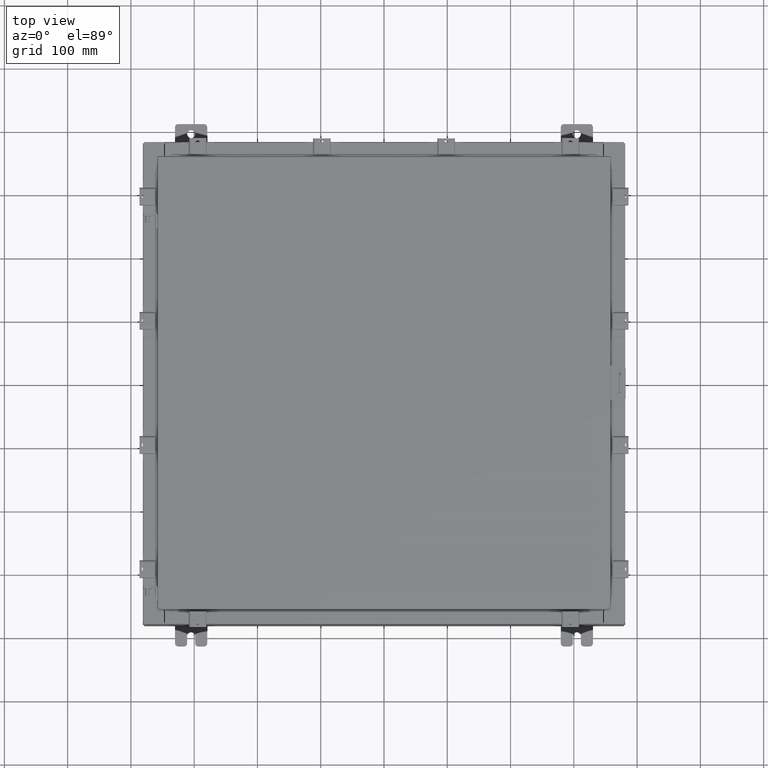
[diagram: clean part render]
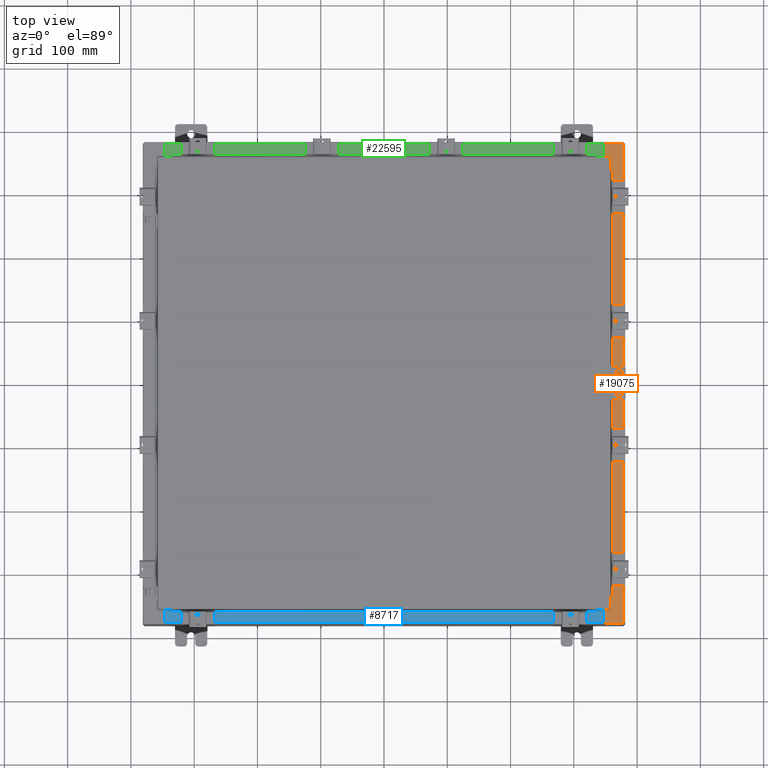
[diagram: same view with three faces highlighted in distinct colors, each labeled with its STEP entity id]
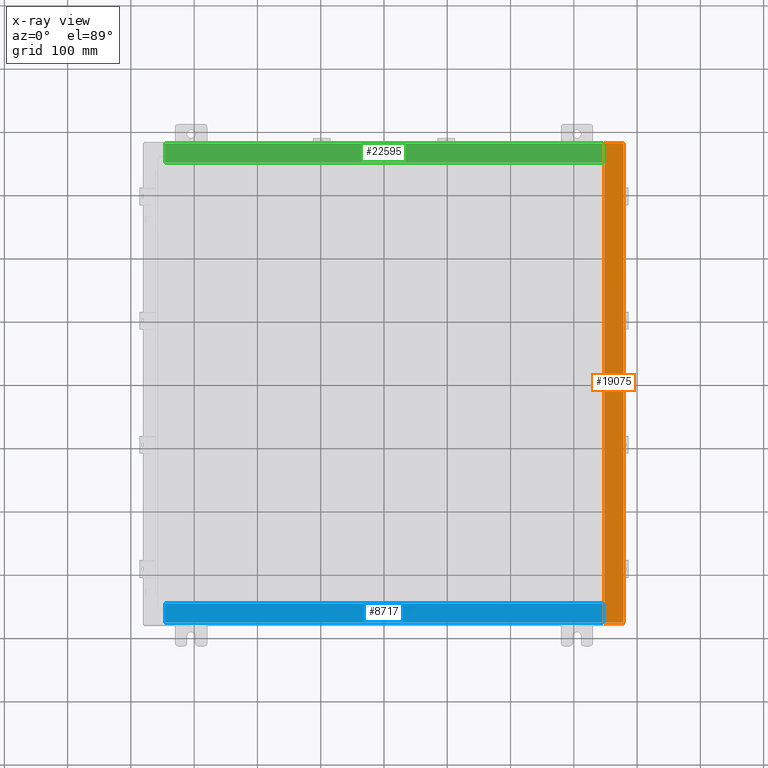
[diagram: x-ray of the same camera — body ghosted, the three highlighted faces saturated]
A machine part, top view with three faces highlighted in distinct colors.
The next image is the same camera in x-ray (body ghosted, the three faces saturated) — at least one of them is partly hidden behind the body in this view.
Their STEP definitions:

[orange] entity #19075 — the highlighted planar face has unit normal (-0, 0, -1).
#10 = LINE ( 'NONE', #6426, #10573 ) ;
#98 = CARTESIAN_POINT ( 'NONE',  ( 13.71270000000003200, -13.59375000000000400, 7.925300000000008900 ) ) ;
#129 = CARTESIAN_POINT ( 'NONE',  ( 13.75005000000003200, -13.63110000000000400, 7.925300000000006200 ) ) ;
#223 = CARTESIAN_POINT ( 'NONE',  ( 4.972393517341156900E-014, 0.0000000000000000000, 7.925300000000092400 ) ) ;
#279 = EDGE_CURVE ( 'NONE', #5998, #10411, #10, .T. ) ;
#1112 = DIRECTION ( 'NONE',  ( 1.000000000000000000, 0.0000000000000000000, 0.0000000000000000000 ) ) ;
#2053 = CARTESIAN_POINT ( 'NONE',  ( 13.69970000000003000, 13.63109999999998600, 7.925300000000007100 ) ) ;
#2262 = DIRECTION ( 'NONE',  ( 6.241167087353086200E-015, 0.0000000000000000000, 1.000000000000000000 ) ) ;
#2384 = ORIENTED_EDGE ( 'NONE', *, *, #6557, .T. ) ;
#2454 = ORIENTED_EDGE ( 'NONE', *, *, #15174, .F. ) ;
#2640 = LINE ( 'NONE', #14648, #6443 ) ;
#3423 = ORIENTED_EDGE ( 'NONE', *, *, #12220, .T. ) ;
#3791 = DIRECTION ( 'NONE',  ( 1.000000000000000000, 1.783190596386596200E-015, -6.241167087353087800E-015 ) ) ;
#4000 = PLANE ( 'NONE',  #11624 ) ;
#4011 = EDGE_CURVE ( 'NONE', #22765, #8154, #6402, .T. ) ;
#4141 = ORIENTED_EDGE ( 'NONE', *, *, #14923, .T. ) ;
#4218 = LINE ( 'NONE', #16989, #21179 ) ;
#4657 = EDGE_CURVE ( 'NONE', #6560, #22765, #10778, .T. ) ;
#4845 = VERTEX_POINT ( 'NONE', #129 ) ;
#4980 = EDGE_CURVE ( 'NONE', #5998, #16349, #23011, .T. ) ;
#5789 = VERTEX_POINT ( 'NONE', #10538 ) ;
#5817 = VECTOR ( 'NONE', #13983, 39.37007874015748100 ) ;
#5998 = VERTEX_POINT ( 'NONE', #7482 ) ;
#6122 = EDGE_CURVE ( 'NONE', #4845, #9684, #16290, .T. ) ;
#6353 = DIRECTION ( 'NONE',  ( -0.0000000000000000000, -1.000000000000000000, -0.0000000000000000000 ) ) ;
#6402 = LINE ( 'NONE', #21381, #5817 ) ;
#6426 = CARTESIAN_POINT ( 'NONE',  ( 4.972393517341156900E-014, 14.92530000000000000, 7.925300000000092400 ) ) ;
#6443 = VECTOR ( 'NONE', #18415, 39.37007874015748100 ) ;
#6557 = EDGE_CURVE ( 'NONE', #7055, #16349, #14807, .T. ) ;
#6560 = VERTEX_POINT ( 'NONE', #98 ) ;
#7055 = VERTEX_POINT ( 'NONE', #7114 ) ;
#7114 = CARTESIAN_POINT ( 'NONE',  ( 13.69970000000003000, -14.92530000000000200, 7.925300000000007100 ) ) ;
#7463 = LINE ( 'NONE', #14231, #11284 ) ;
#7482 = CARTESIAN_POINT ( 'NONE',  ( 14.91230000000002900, 14.92530000000000200, 7.925300000000000000 ) ) ;
#7635 = DIRECTION ( 'NONE',  ( -1.000000000000000000, 0.0000000000000000000, 0.0000000000000000000 ) ) ;
#7879 = DIRECTION ( 'NONE',  ( -1.000000000000000000, 0.0000000000000000000, 6.241167087353087800E-015 ) ) ;
#8061 = LINE ( 'NONE', #20178, #22405 ) ;
#8154 = VERTEX_POINT ( 'NONE', #17192 ) ;
#8871 = ORIENTED_EDGE ( 'NONE', *, *, #4980, .F. ) ;
#9185 = LINE ( 'NONE', #20844, #23489 ) ;
#9639 = DIRECTION ( 'NONE',  ( -1.000000000000000000, 0.0000000000000000000, 6.241167087353086200E-015 ) ) ;
#9684 = VERTEX_POINT ( 'NONE', #11806 ) ;
#9729 = DIRECTION ( 'NONE',  ( -2.590438124695581200E-031, -1.000000000000000000, 1.616735716567471300E-045 ) ) ;
#9772 = CARTESIAN_POINT ( 'NONE',  ( 13.75005000000003200, -13.61242500000000400, 7.925300000000008900 ) ) ;
#10411 = VERTEX_POINT ( 'NONE', #20647 ) ;
#10432 = EDGE_CURVE ( 'NONE', #11508, #22908, #4218, .T. ) ;
#10538 = CARTESIAN_POINT ( 'NONE',  ( 13.69970000000003000, -13.63110000000000400, 7.925300000000007100 ) ) ;
#10573 = VECTOR ( 'NONE', #7879, 39.37007874015748100 ) ;
#10707 = FACE_OUTER_BOUND ( 'NONE', #23512, .T. ) ;
#10778 = LINE ( 'NONE', #18240, #18977 ) ;
#11176 = ORIENTED_EDGE ( 'NONE', *, *, #23994, .F. ) ;
#11284 = VECTOR ( 'NONE', #1112, 39.37007874015748100 ) ;
#11389 = AXIS2_PLACEMENT_3D ( 'NONE', #9772, #22837, #11672 ) ;
#11508 = VERTEX_POINT ( 'NONE', #14662 ) ;
#11624 = AXIS2_PLACEMENT_3D ( 'NONE', #223, #20824, #9639 ) ;
#11672 = DIRECTION ( 'NONE',  ( 1.000000000000000000, 0.0000000000000000000, 0.0000000000000000000 ) ) ;
#11806 = CARTESIAN_POINT ( 'NONE',  ( 13.75005000000003200, -13.59375000000000400, 7.925300000000006200 ) ) ;
#12220 = EDGE_CURVE ( 'NONE', #10411, #22908, #9185, .T. ) ;
#13490 = CARTESIAN_POINT ( 'NONE',  ( 13.75005000000003200, 13.61242499999998600, 7.925300000000008900 ) ) ;
#13983 = DIRECTION ( 'NONE',  ( 1.000000000000000000, 0.0000000000000000000, 0.0000000000000000000 ) ) ;
#14114 = ORIENTED_EDGE ( 'NONE', *, *, #23384, .F. ) ;
#14231 = CARTESIAN_POINT ( 'NONE',  ( 13.69970000000003000, -13.63110000000000400, 7.925300000000008900 ) ) ;
#14648 = CARTESIAN_POINT ( 'NONE',  ( 13.69970000000003000, -3.548822517689199900E-030, 7.925300000000007100 ) ) ;
#14662 = CARTESIAN_POINT ( 'NONE',  ( 13.75005000000003200, 13.63109999999998600, 7.925300000000006200 ) ) ;
#14807 = LINE ( 'NONE', #16907, #24105 ) ;
#14923 = EDGE_CURVE ( 'NONE', #5789, #7055, #2640, .T. ) ;
#15174 = EDGE_CURVE ( 'NONE', #8154, #11508, #17277, .T. ) ;
#15384 = DIRECTION ( 'NONE',  ( 1.000000000000000000, 0.0000000000000000000, 0.0000000000000000000 ) ) ;
#16290 = CIRCLE ( 'NONE', #11389, 0.01867499999999949400 ) ;
#16349 = VERTEX_POINT ( 'NONE', #16899 ) ;
#16899 = CARTESIAN_POINT ( 'NONE',  ( 14.91230000000002900, -14.92530000000000200, 7.925300000000000000 ) ) ;
#16907 = CARTESIAN_POINT ( 'NONE',  ( 7.633858978166047400E-014, -14.92530000000002700, 7.925300000000092400 ) ) ;
#16914 = ORIENTED_EDGE ( 'NONE', *, *, #279, .T. ) ;
#16989 = CARTESIAN_POINT ( 'NONE',  ( 13.75005000000003200, 13.63109999999998600, 7.925300000000008900 ) ) ;
#17192 = CARTESIAN_POINT ( 'NONE',  ( 13.75005000000003200, 13.59374999999998600, 7.925300000000006200 ) ) ;
#17277 = CIRCLE ( 'NONE', #21330, 0.01867499999999949400 ) ;
#17496 = VECTOR ( 'NONE', #6353, 39.37007874015748100 ) ;
#18240 = CARTESIAN_POINT ( 'NONE',  ( 13.71270000000003200, -13.59375000000000000, 7.925300000000008900 ) ) ;
#18415 = DIRECTION ( 'NONE',  ( -2.590438124695581200E-031, -1.000000000000000000, 1.616735716567471300E-045 ) ) ;
#18977 = VECTOR ( 'NONE', #20100, 39.37007874015748100 ) ;
#19075 = ADVANCED_FACE ( 'NONE', ( #10707 ), #4000, .F. ) ;
#19386 = ORIENTED_EDGE ( 'NONE', *, *, #4011, .F. ) ;
#19437 = CARTESIAN_POINT ( 'NONE',  ( 14.91230000000002900, -14.92530000000000200, 7.925300000000000000 ) ) ;
#20100 = DIRECTION ( 'NONE',  ( -0.0000000000000000000, 1.000000000000000000, -0.0000000000000000000 ) ) ;
#20178 = CARTESIAN_POINT ( 'NONE',  ( 13.75005000000003200, -13.59375000000000400, 7.925300000000008900 ) ) ;
#20647 = CARTESIAN_POINT ( 'NONE',  ( 13.69970000000003000, 14.92530000000000200, 7.925300000000007100 ) ) ;
#20824 = DIRECTION ( 'NONE',  ( -6.241167087353086200E-015, 0.0000000000000000000, -1.000000000000000000 ) ) ;
#20844 = CARTESIAN_POINT ( 'NONE',  ( 13.69970000000003000, -3.548822517689199900E-030, 7.925300000000007100 ) ) ;
#20973 = ORIENTED_EDGE ( 'NONE', *, *, #4657, .F. ) ;
#21179 = VECTOR ( 'NONE', #7635, 39.37007874015748100 ) ;
#21231 = ORIENTED_EDGE ( 'NONE', *, *, #6122, .F. ) ;
#21330 = AXIS2_PLACEMENT_3D ( 'NONE', #13490, #2262, #15384 ) ;
#21381 = CARTESIAN_POINT ( 'NONE',  ( 13.71270000000003200, 13.59374999999998600, 7.925300000000008900 ) ) ;
#21422 = ORIENTED_EDGE ( 'NONE', *, *, #10432, .F. ) ;
#22061 = DIRECTION ( 'NONE',  ( -1.000000000000000000, 0.0000000000000000000, 0.0000000000000000000 ) ) ;
#22405 = VECTOR ( 'NONE', #22061, 39.37007874015748100 ) ;
#22765 = VERTEX_POINT ( 'NONE', #23871 ) ;
#22837 = DIRECTION ( 'NONE',  ( 6.241167087353086200E-015, 0.0000000000000000000, 1.000000000000000000 ) ) ;
#22908 = VERTEX_POINT ( 'NONE', #2053 ) ;
#23011 = LINE ( 'NONE', #19437, #17496 ) ;
#23384 = EDGE_CURVE ( 'NONE', #9684, #6560, #8061, .T. ) ;
#23489 = VECTOR ( 'NONE', #9729, 39.37007874015748100 ) ;
#23512 = EDGE_LOOP ( 'NONE', ( #11176, #4141, #2384, #8871, #16914, #3423, #21422, #2454, #19386, #20973, #14114, #21231 ) ) ;
#23871 = CARTESIAN_POINT ( 'NONE',  ( 13.71270000000003200, 13.59374999999998600, 7.925300000000008900 ) ) ;
#23994 = EDGE_CURVE ( 'NONE', #5789, #4845, #7463, .T. ) ;
#24105 = VECTOR ( 'NONE', #3791, 39.37007874015748100 ) ;

[blue] entity #8717 — the highlighted planar face has unit normal (-0, -0, 1).
#680 = CARTESIAN_POINT ( 'NONE',  ( -13.63719999999999800, -0.07469999999999973900, 4.000000000000000000 ) ) ;
#1006 = DIRECTION ( 'NONE',  ( -0.0000000000000000000, -1.000000000000000000, 3.566381192773190000E-015 ) ) ;
#2117 = EDGE_LOOP ( 'NONE', ( #23490, #15856, #13757, #4124 ) ) ;
#2883 = LINE ( 'NONE', #3110, #17248 ) ;
#3110 = CARTESIAN_POINT ( 'NONE',  ( -1.756834753793995900E-018, -0.08770000000000000000, 4.000000000000000900 ) ) ;
#3733 = DIRECTION ( 'NONE',  ( 0.0000000000000000000, 3.566381192773190000E-015, 1.000000000000000000 ) ) ;
#4124 = ORIENTED_EDGE ( 'NONE', *, *, #20754, .T. ) ;
#5443 = LINE ( 'NONE', #8512, #14247 ) ;
#6050 = VERTEX_POINT ( 'NONE', #22518 ) ;
#7086 = CARTESIAN_POINT ( 'NONE',  ( 13.63720000000000400, -1.287299999999999900, 4.000000000000004400 ) ) ;
#8512 = CARTESIAN_POINT ( 'NONE',  ( 13.63720000000000400, -1.300299999999999800, 4.000000000000004400 ) ) ;
#8555 = VERTEX_POINT ( 'NONE', #7086 ) ;
#8717 = ADVANCED_FACE ( 'NONE', ( #22088 ), #20486, .T. ) ;
#8742 = DIRECTION ( 'NONE',  ( -1.000000000000000000, 2.003232330437526000E-017, -7.144290108027600900E-032 ) ) ;
#9014 = EDGE_CURVE ( 'NONE', #23231, #6050, #22114, .T. ) ;
#9200 = EDGE_CURVE ( 'NONE', #13222, #8555, #5443, .T. ) ;
#13222 = VERTEX_POINT ( 'NONE', #23645 ) ;
#13757 = ORIENTED_EDGE ( 'NONE', *, *, #9200, .F. ) ;
#14247 = VECTOR ( 'NONE', #1006, 39.37007874015748100 ) ;
#15856 = ORIENTED_EDGE ( 'NONE', *, *, #21534, .F. ) ;
#16758 = CARTESIAN_POINT ( 'NONE',  ( 0.0000000000000000000, 1.425992975200418500E-014, 4.000000000000000000 ) ) ;
#16842 = DIRECTION ( 'NONE',  ( 0.0000000000000000000, -1.000000000000000000, 3.566381192773190000E-015 ) ) ;
#17172 = VECTOR ( 'NONE', #17551, 39.37007874015748100 ) ;
#17248 = VECTOR ( 'NONE', #8742, 39.37007874015748100 ) ;
#17551 = DIRECTION ( 'NONE',  ( -0.0000000000000000000, 1.000000000000000000, -3.566381192773190000E-015 ) ) ;
#17843 = CARTESIAN_POINT ( 'NONE',  ( -13.63719999999999800, -1.287299999999999200, 4.000000000000004400 ) ) ;
#19727 = AXIS2_PLACEMENT_3D ( 'NONE', #16758, #3733, #16842 ) ;
#20486 = PLANE ( 'NONE',  #19727 ) ;
#20754 = EDGE_CURVE ( 'NONE', #13222, #6050, #2883, .T. ) ;
#21534 = EDGE_CURVE ( 'NONE', #8555, #23231, #22444, .T. ) ;
#21853 = VECTOR ( 'NONE', #24153, 39.37007874015748100 ) ;
#22088 = FACE_OUTER_BOUND ( 'NONE', #2117, .T. ) ;
#22114 = LINE ( 'NONE', #680, #17172 ) ;
#22372 = CARTESIAN_POINT ( 'NONE',  ( 13.63720000000000400, -1.287299999999999900, 4.000000000000003600 ) ) ;
#22444 = LINE ( 'NONE', #22372, #21853 ) ;
#22518 = CARTESIAN_POINT ( 'NONE',  ( -13.63719999999999800, -0.08770000000000000000, 4.000000000000000000 ) ) ;
#23231 = VERTEX_POINT ( 'NONE', #17843 ) ;
#23490 = ORIENTED_EDGE ( 'NONE', *, *, #9014, .F. ) ;
#23645 = CARTESIAN_POINT ( 'NONE',  ( 13.63720000000000400, -0.08769999999999965300, 4.000000000000000000 ) ) ;
#24153 = DIRECTION ( 'NONE',  ( -1.000000000000000000, 0.0000000000000000000, 0.0000000000000000000 ) ) ;

[green] entity #22595 — the highlighted planar face has unit normal (0, 0, 1).
#495 = CARTESIAN_POINT ( 'NONE',  ( 13.63720000000000400, -1.287299999999999900, 4.000000000000003600 ) ) ;
#1479 = LINE ( 'NONE', #2082, #10271 ) ;
#2082 = CARTESIAN_POINT ( 'NONE',  ( -1.756834753793995900E-018, -0.08770000000000000000, 4.000000000000000900 ) ) ;
#2835 = VERTEX_POINT ( 'NONE', #20750 ) ;
#3208 = LINE ( 'NONE', #17712, #21923 ) ;
#5593 = EDGE_CURVE ( 'NONE', #2835, #5813, #20663, .T. ) ;
#5813 = VERTEX_POINT ( 'NONE', #23735 ) ;
#6819 = ORIENTED_EDGE ( 'NONE', *, *, #14391, .T. ) ;
#8005 = CARTESIAN_POINT ( 'NONE',  ( -13.63719999999999800, -0.08770000000000000000, 4.000000000000000000 ) ) ;
#8382 = FACE_OUTER_BOUND ( 'NONE', #20284, .T. ) ;
#8430 = CARTESIAN_POINT ( 'NONE',  ( 0.0000000000000000000, 1.425992975200418500E-014, 4.000000000000000000 ) ) ;
#10271 = VECTOR ( 'NONE', #15200, 39.37007874015748100 ) ;
#10426 = DIRECTION ( 'NONE',  ( 0.0000000000000000000, 3.566381192773190000E-015, 1.000000000000000000 ) ) ;
#10628 = ORIENTED_EDGE ( 'NONE', *, *, #23015, .F. ) ;
#10739 = VECTOR ( 'NONE', #13600, 39.37007874015748100 ) ;
#13530 = CARTESIAN_POINT ( 'NONE',  ( 13.63720000000000400, -1.300299999999999800, 4.000000000000004400 ) ) ;
#13600 = DIRECTION ( 'NONE',  ( -1.000000000000000000, 0.0000000000000000000, 0.0000000000000000000 ) ) ;
#14391 = EDGE_CURVE ( 'NONE', #2835, #16562, #1479, .T. ) ;
#14818 = AXIS2_PLACEMENT_3D ( 'NONE', #8430, #10426, #23457 ) ;
#15200 = DIRECTION ( 'NONE',  ( -1.000000000000000000, 2.003232330437526000E-017, -7.144290108027600900E-032 ) ) ;
#15673 = VERTEX_POINT ( 'NONE', #22259 ) ;
#15723 = VECTOR ( 'NONE', #21354, 39.37007874015748100 ) ;
#16562 = VERTEX_POINT ( 'NONE', #8005 ) ;
#17421 = ORIENTED_EDGE ( 'NONE', *, *, #5593, .F. ) ;
#17712 = CARTESIAN_POINT ( 'NONE',  ( -13.63719999999999800, -0.07469999999999973900, 4.000000000000000000 ) ) ;
#19499 = ORIENTED_EDGE ( 'NONE', *, *, #19921, .F. ) ;
#19921 = EDGE_CURVE ( 'NONE', #15673, #16562, #3208, .T. ) ;
#20284 = EDGE_LOOP ( 'NONE', ( #19499, #10628, #17421, #6819 ) ) ;
#20663 = LINE ( 'NONE', #13530, #15723 ) ;
#20673 = LINE ( 'NONE', #495, #10739 ) ;
#20750 = CARTESIAN_POINT ( 'NONE',  ( 13.63720000000000400, -0.08769999999999965300, 4.000000000000000000 ) ) ;
#21354 = DIRECTION ( 'NONE',  ( -0.0000000000000000000, -1.000000000000000000, 3.566381192773190000E-015 ) ) ;
#21607 = PLANE ( 'NONE',  #14818 ) ;
#21923 = VECTOR ( 'NONE', #23312, 39.37007874015748100 ) ;
#22259 = CARTESIAN_POINT ( 'NONE',  ( -13.63719999999999800, -1.287299999999999200, 4.000000000000004400 ) ) ;
#22595 = ADVANCED_FACE ( 'NONE', ( #8382 ), #21607, .T. ) ;
#23015 = EDGE_CURVE ( 'NONE', #5813, #15673, #20673, .T. ) ;
#23312 = DIRECTION ( 'NONE',  ( -0.0000000000000000000, 1.000000000000000000, -3.566381192773190000E-015 ) ) ;
#23457 = DIRECTION ( 'NONE',  ( 0.0000000000000000000, -1.000000000000000000, 3.566381192773190000E-015 ) ) ;
#23735 = CARTESIAN_POINT ( 'NONE',  ( 13.63720000000000400, -1.287299999999999900, 4.000000000000004400 ) ) ;